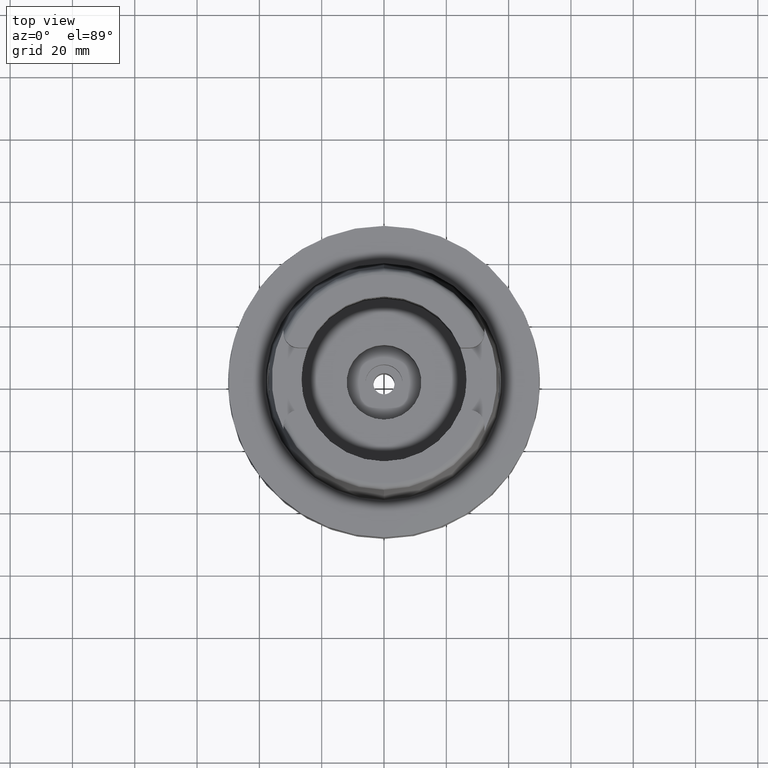
[diagram: clean part render]
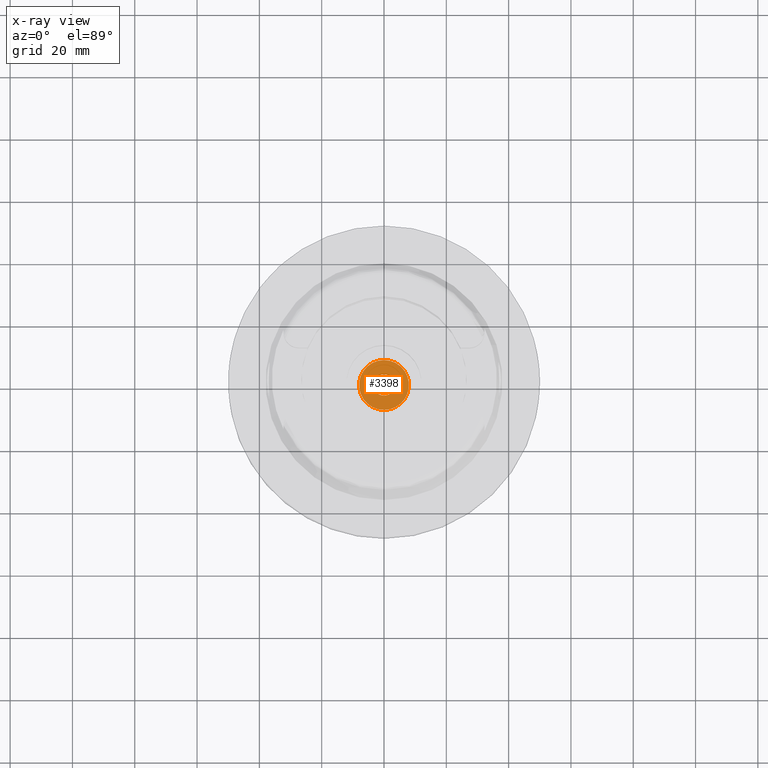
[diagram: x-ray — body ghosted, one internal face saturated and labeled with its STEP entity id]
A machine part, top view, then the same camera in x-ray: the body is ghosted and one INTERNAL B-rep face — a face not visible from any outside direction — is saturated and labeled: STEP entity #3398.
In plain terms, the highlighted planar face has unit normal (0, 0, 1).
Its self-contained STEP definition (entity closure, byte-faithful):
#967=CARTESIAN_POINT('',(0.E0,0.E0,-6.4E1));
#968=DIRECTION('',(0.E0,0.E0,1.E0));
#969=DIRECTION('',(0.E0,-1.E0,0.E0));
#970=AXIS2_PLACEMENT_3D('',#967,#968,#969);
#975=CARTESIAN_POINT('',(0.E0,0.E0,-6.4E1));
#976=DIRECTION('',(0.E0,0.E0,1.E0));
#977=DIRECTION('',(0.E0,1.E0,0.E0));
#978=AXIS2_PLACEMENT_3D('',#975,#976,#977);
#983=CARTESIAN_POINT('',(0.E0,0.E0,-6.4E1));
#984=DIRECTION('',(0.E0,0.E0,-1.E0));
#985=DIRECTION('',(0.E0,-1.E0,0.E0));
#986=AXIS2_PLACEMENT_3D('',#983,#984,#985);
#991=CARTESIAN_POINT('',(0.E0,0.E0,-6.4E1));
#992=DIRECTION('',(0.E0,0.E0,-1.E0));
#993=DIRECTION('',(0.E0,1.E0,0.E0));
#994=AXIS2_PLACEMENT_3D('',#991,#992,#993);
#2508=CARTESIAN_POINT('',(0.E0,3.4E0,-6.4E1));
#2509=VERTEX_POINT('',#2508);
#2510=CARTESIAN_POINT('',(0.E0,-3.4E0,-6.4E1));
#2511=VERTEX_POINT('',#2510);
#2512=CARTESIAN_POINT('',(0.E0,-8.E0,-6.4E1));
#2513=CARTESIAN_POINT('',(0.E0,8.E0,-6.4E1));
#2514=VERTEX_POINT('',#2512);
#2515=VERTEX_POINT('',#2513);
#3383=CARTESIAN_POINT('',(0.E0,0.E0,-6.4E1));
#3384=DIRECTION('',(0.E0,0.E0,1.E0));
#3385=DIRECTION('',(0.E0,1.E0,0.E0));
#3386=AXIS2_PLACEMENT_3D('',#3383,#3384,#3385);
#3387=PLANE('',#3386);
#3389=ORIENTED_EDGE('',*,*,#3388,.T.);
#3391=ORIENTED_EDGE('',*,*,#3390,.T.);
#3392=EDGE_LOOP('',(#3389,#3391));
#3393=FACE_OUTER_BOUND('',#3392,.F.);
#3394=ORIENTED_EDGE('',*,*,#3376,.T.);
#3395=ORIENTED_EDGE('',*,*,#3365,.T.);
#3396=EDGE_LOOP('',(#3394,#3395));
#3397=FACE_BOUND('',#3396,.F.);
#971=CIRCLE('',#970,8.E0);
#979=CIRCLE('',#978,8.E0);
#987=CIRCLE('',#986,3.4E0);
#995=CIRCLE('',#994,3.4E0);
#3365=EDGE_CURVE('',#2509,#2511,#995,.T.);
#3376=EDGE_CURVE('',#2511,#2509,#987,.T.);
#3388=EDGE_CURVE('',#2514,#2515,#971,.T.);
#3390=EDGE_CURVE('',#2515,#2514,#979,.T.);
#3398=ADVANCED_FACE('',(#3393,#3397),#3387,.F.);